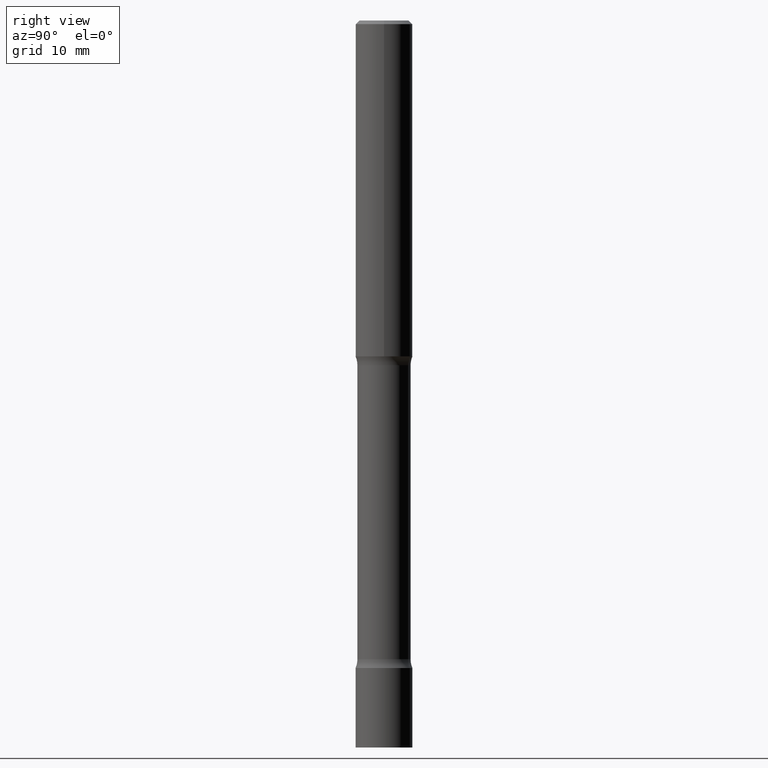
[diagram: clean part render]
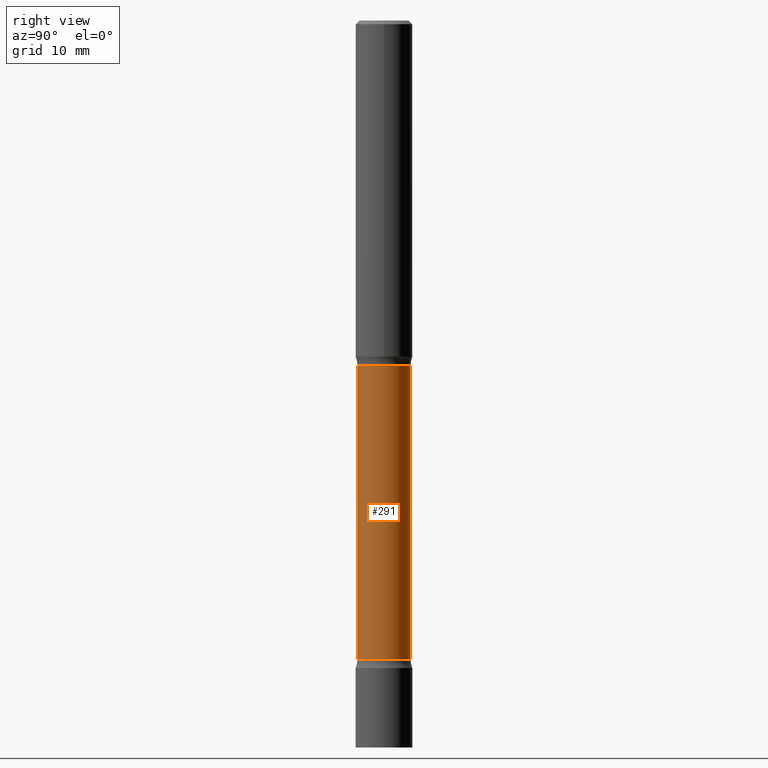
[diagram: same view with one face highlighted and labeled with its STEP entity id]
A machine part, right view. The second image highlights one B-rep face of the part: STEP entity #291.
In plain terms, the highlighted cylindrical surface (edge-blend (fillet) strip) has radius 3.7147 mm, axis along (0, -0, -1).
Its self-contained STEP definition (entity closure, byte-faithful):
#15 = LINE ( 'NONE', #325, #441 ) ;
#31 = ORIENTED_EDGE ( 'NONE', *, *, #363, .F. ) ;
#50 = DIRECTION ( 'NONE',  ( 2.048022150416317595E-29, -4.060647571162904696E-15, -1.000000000000000000 ) ) ;
#53 = AXIS2_PLACEMENT_3D ( 'NONE', #54, #50, #58 ) ;
#54 = CARTESIAN_POINT ( 'NONE',  ( 8.614576895749548088E-29, -1.223528112268018578E-14, -3.513510205144335874 ) ) ;
#55 = DIRECTION ( 'NONE',  ( 2.048022150416317595E-29, -4.060647571162904696E-15, -1.000000000000000000 ) ) ;
#58 = DIRECTION ( 'NONE',  ( 6.982962677686265922E-15, 1.000000000000000000, -3.735860504156253934E-15 ) ) ;
#59 = VERTEX_POINT ( 'NONE', #158 ) ;
#117 = EDGE_CURVE ( 'NONE', #59, #258, #367, .T. ) ;
#125 = DIRECTION ( 'NONE',  ( 2.048022150416317595E-29, -4.060647571162904696E-15, -1.000000000000000000 ) ) ;
#158 = CARTESIAN_POINT ( 'NONE',  ( -1.037650322162884187E-15, -0.1462500000000046263, -1.896989794855662659 ) ) ;
#179 = DIRECTION ( 'NONE',  ( 6.982962677686265922E-15, 1.000000000000000000, -3.735860504156284699E-15 ) ) ;
#204 = AXIS2_PLACEMENT_3D ( 'NONE', #383, #456, #179 ) ;
#216 = CARTESIAN_POINT ( 'NONE',  ( 1.021258291611703439E-15, 0.1462499999999878897, -3.513510205144336318 ) ) ;
#220 = ORIENTED_EDGE ( 'NONE', *, *, #117, .T. ) ;
#248 = FACE_OUTER_BOUND ( 'NONE', #375, .T. ) ;
#250 = CIRCLE ( 'NONE', #53, 0.1462500000000001299 ) ;
#258 = VERTEX_POINT ( 'NONE', #427 ) ;
#291 = ADVANCED_FACE ( 'NONE', ( #248 ), #349, .T. ) ;
#297 = CIRCLE ( 'NONE', #204, 0.1462499999999989364 ) ;
#300 = DIRECTION ( 'NONE',  ( 6.982962677686266711E-15, 1.000000000000000000, -3.735860504156269711E-15 ) ) ;
#301 = ORIENTED_EDGE ( 'NONE', *, *, #384, .F. ) ;
#316 = CARTESIAN_POINT ( 'NONE',  ( 1.021258291611662024E-15, 0.1462499999999932743, -1.896989794855663769 ) ) ;
#325 = CARTESIAN_POINT ( 'NONE',  ( 1.021258291611709158E-15, 0.1462499999999853362, -4.000000000000000888 ) ) ;
#334 = VERTEX_POINT ( 'NONE', #216 ) ;
#342 = AXIS2_PLACEMENT_3D ( 'NONE', #414, #490, #300 ) ;
#349 = CYLINDRICAL_SURFACE ( 'NONE', #342, 0.1462499999999995193 ) ;
#363 = EDGE_CURVE ( 'NONE', #334, #258, #250, .T. ) ;
#367 = LINE ( 'NONE', #404, #392 ) ;
#372 = VERTEX_POINT ( 'NONE', #316 ) ;
#375 = EDGE_LOOP ( 'NONE', ( #442, #220, #31, #301 ) ) ;
#383 = CARTESIAN_POINT ( 'NONE',  ( 5.303907288878273163E-29, -5.671161444906225909E-15, -1.896989794855663325 ) ) ;
#384 = EDGE_CURVE ( 'NONE', #372, #334, #15, .T. ) ;
#392 = VECTOR ( 'NONE', #55, 39.37007874015748143 ) ;
#404 = CARTESIAN_POINT ( 'NONE',  ( -1.003347832173987079E-15, -0.1462500000000137301, -3.999999999999999556 ) ) ;
#414 = CARTESIAN_POINT ( 'NONE',  ( 9.610918771565439061E-29, -1.421074472655638094E-14, -4.000000000000000000 ) ) ;
#427 = CARTESIAN_POINT ( 'NONE',  ( -1.037650322162858944E-15, -0.1462500000000123701, -3.513510205144335430 ) ) ;
#441 = VECTOR ( 'NONE', #125, 39.37007874015748143 ) ;
#442 = ORIENTED_EDGE ( 'NONE', *, *, #468, .T. ) ;
#456 = DIRECTION ( 'NONE',  ( 2.048022150416317595E-29, -4.060647571162904696E-15, -1.000000000000000000 ) ) ;
#468 = EDGE_CURVE ( 'NONE', #372, #59, #297, .T. ) ;
#490 = DIRECTION ( 'NONE',  ( 2.048022150416317595E-29, -4.060647571162904696E-15, -1.000000000000000000 ) ) ;